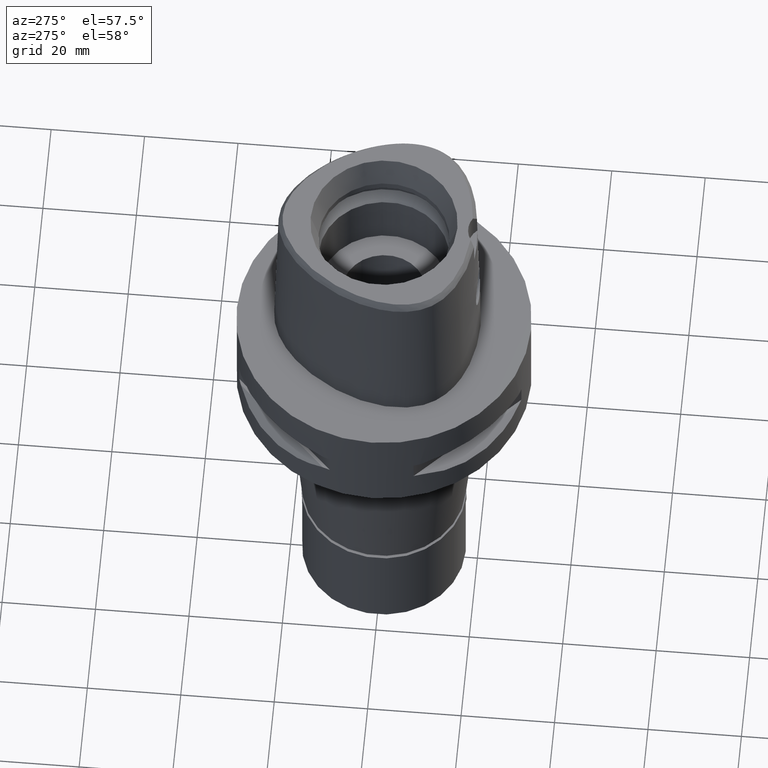
[diagram: clean part render]
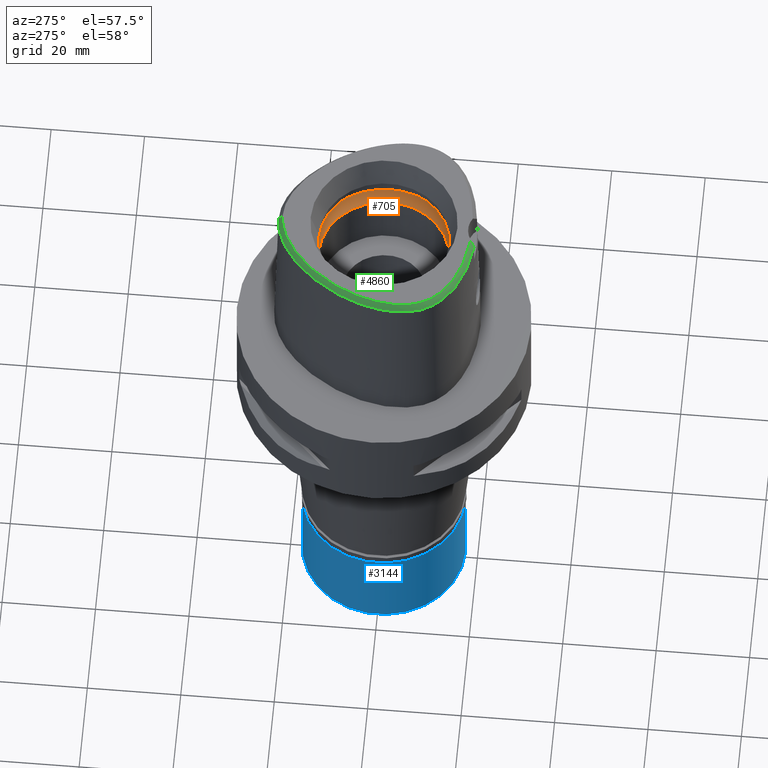
[diagram: same view with three faces highlighted in distinct colors, each labeled with its STEP entity id]
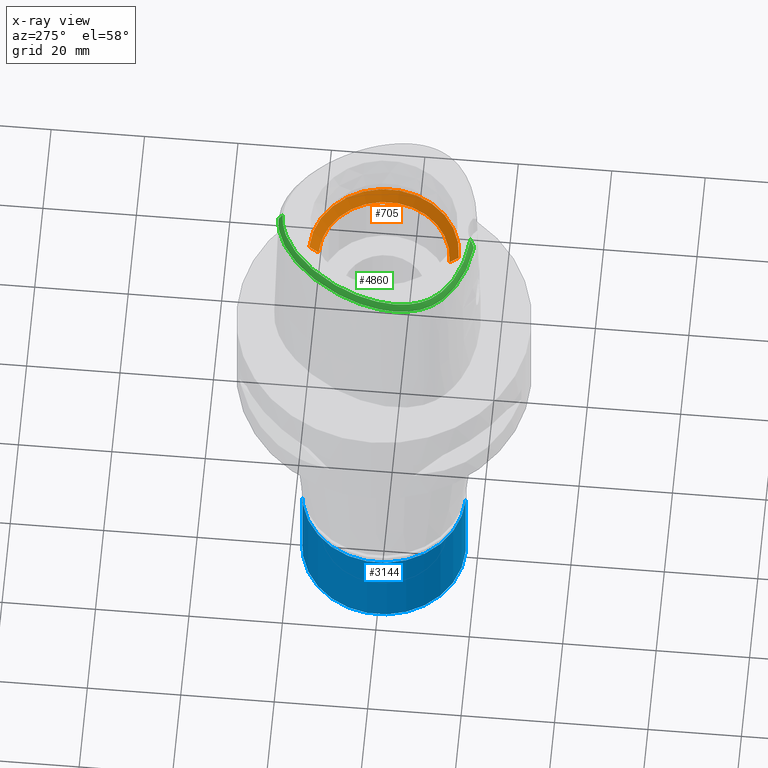
[diagram: x-ray of the same camera — body ghosted, the three highlighted faces saturated]
A machine part, auxiliary view with three faces highlighted in distinct colors.
The next image is the same camera in x-ray (body ghosted, the three faces saturated) — at least one of them is partly hidden behind the body in this view.
Their STEP definitions:

[orange] entity #705 — the highlighted conical surface has half-angle 45 deg.
#108 = CARTESIAN_POINT ( 'NONE',  ( 0.0000000000000000000, -14.00000000000000000, 24.19999999999999929 ) ) ;
#148 = EDGE_LOOP ( 'NONE', ( #951, #2965, #1402, #787 ) ) ;
#393 = EDGE_CURVE ( 'NONE', #3385, #3373, #489, .T. ) ;
#489 = LINE ( 'NONE', #108, #527 ) ;
#527 = VECTOR ( 'NONE', #4734, 1000.000000000000114 ) ;
#561 = EDGE_CURVE ( 'NONE', #3385, #2872, #3978, .T. ) ;
#677 = DIRECTION ( 'NONE',  ( 0.0000000000000000000, 0.0000000000000000000, -1.000000000000000000 ) ) ;
#686 = DIRECTION ( 'NONE',  ( 0.0000000000000000000, 0.0000000000000000000, 1.000000000000000000 ) ) ;
#705 = ADVANCED_FACE ( 'NONE', ( #2675 ), #1316, .F. ) ;
#787 = ORIENTED_EDGE ( 'NONE', *, *, #393, .T. ) ;
#951 = ORIENTED_EDGE ( 'NONE', *, *, #4789, .F. ) ;
#1316 = CONICAL_SURFACE ( 'NONE', #3006, 15.00000000000000000, 0.7853981633972997312 ) ;
#1402 = ORIENTED_EDGE ( 'NONE', *, *, #561, .F. ) ;
#1488 = CARTESIAN_POINT ( 'NONE',  ( 0.0000000000000000000, 16.00000000000000000, 26.20000000000000284 ) ) ;
#1739 = DIRECTION ( 'NONE',  ( 0.0000000000000000000, -1.000000000000000000, 0.0000000000000000000 ) ) ;
#1772 = CARTESIAN_POINT ( 'NONE',  ( 0.0000000000000000000, -14.00000000000000000, 24.19999999999999929 ) ) ;
#1802 = CARTESIAN_POINT ( 'NONE',  ( 0.0000000000000000000, -16.00000000000000000, 26.20000000000000284 ) ) ;
#1879 = AXIS2_PLACEMENT_3D ( 'NONE', #3770, #677, #3138 ) ;
#1936 = CARTESIAN_POINT ( 'NONE',  ( 0.0000000000000000000, 14.00000000000000000, 24.19999999999999929 ) ) ;
#2093 = DIRECTION ( 'NONE',  ( 0.0000000000000000000, 0.0000000000000000000, 1.000000000000000000 ) ) ;
#2236 = EDGE_CURVE ( 'NONE', #2872, #4688, #3072, .T. ) ;
#2625 = CARTESIAN_POINT ( 'NONE',  ( 0.0000000000000000000, 0.0000000000000000000, 25.19999999999999929 ) ) ;
#2675 = FACE_OUTER_BOUND ( 'NONE', #148, .T. ) ;
#2872 = VERTEX_POINT ( 'NONE', #3739 ) ;
#2965 = ORIENTED_EDGE ( 'NONE', *, *, #2236, .F. ) ;
#3006 = AXIS2_PLACEMENT_3D ( 'NONE', #2625, #686, #3406 ) ;
#3072 = LINE ( 'NONE', #1936, #4543 ) ;
#3138 = DIRECTION ( 'NONE',  ( 0.0000000000000000000, 1.000000000000000000, 0.0000000000000000000 ) ) ;
#3373 = VERTEX_POINT ( 'NONE', #1802 ) ;
#3385 = VERTEX_POINT ( 'NONE', #1772 ) ;
#3406 = DIRECTION ( 'NONE',  ( 0.0000000000000000000, 1.000000000000000000, 0.0000000000000000000 ) ) ;
#3552 = DIRECTION ( 'NONE',  ( 0.0000000000000000000, 0.7071067811865474617, 0.7071067811865474617 ) ) ;
#3636 = CARTESIAN_POINT ( 'NONE',  ( 0.0000000000000000000, 0.0000000000000000000, 24.19999999999999929 ) ) ;
#3739 = CARTESIAN_POINT ( 'NONE',  ( 0.0000000000000000000, 14.00000000000000000, 24.19999999999999929 ) ) ;
#3770 = CARTESIAN_POINT ( 'NONE',  ( 0.0000000000000000000, 0.0000000000000000000, 26.20000000000000284 ) ) ;
#3904 = AXIS2_PLACEMENT_3D ( 'NONE', #3636, #2093, #1739 ) ;
#3978 = CIRCLE ( 'NONE', #3904, 14.00000000000000000 ) ;
#4543 = VECTOR ( 'NONE', #3552, 1000.000000000000114 ) ;
#4688 = VERTEX_POINT ( 'NONE', #1488 ) ;
#4711 = CIRCLE ( 'NONE', #1879, 16.00000000000000000 ) ;
#4734 = DIRECTION ( 'NONE',  ( 0.0000000000000000000, -0.7071067811865474617, 0.7071067811865474617 ) ) ;
#4789 = EDGE_CURVE ( 'NONE', #4688, #3373, #4711, .T. ) ;

[blue] entity #3144 — the highlighted cylindrical surface (partial cylindrical patch) has radius 17.5 mm, axis along (0, 0, -1).
#22 = DIRECTION ( 'NONE',  ( 0.0000000000000000000, 1.000000000000000000, 0.0000000000000000000 ) ) ;
#50 = CARTESIAN_POINT ( 'NONE',  ( 0.0000000000000000000, 17.50000000000000000, -22.50000000000000000 ) ) ;
#77 = VERTEX_POINT ( 'NONE', #3578 ) ;
#107 = DIRECTION ( 'NONE',  ( 0.0000000000000000000, -1.000000000000000000, 0.0000000000000000000 ) ) ;
#190 = ORIENTED_EDGE ( 'NONE', *, *, #4747, .T. ) ;
#228 = CARTESIAN_POINT ( 'NONE',  ( 0.0000000000000000000, 17.50000000000000000, -2.000000000000000000 ) ) ;
#450 = EDGE_LOOP ( 'NONE', ( #810, #4045, #1771, #190 ) ) ;
#810 = ORIENTED_EDGE ( 'NONE', *, *, #1812, .T. ) ;
#1220 = DIRECTION ( 'NONE',  ( 0.0000000000000000000, 0.0000000000000000000, -1.000000000000000000 ) ) ;
#1303 = DIRECTION ( 'NONE',  ( 0.0000000000000000000, -1.000000000000000000, 0.0000000000000000000 ) ) ;
#1393 = CIRCLE ( 'NONE', #4872, 17.50000000000000000 ) ;
#1604 = VERTEX_POINT ( 'NONE', #1984 ) ;
#1771 = ORIENTED_EDGE ( 'NONE', *, *, #4341, .T. ) ;
#1812 = EDGE_CURVE ( 'NONE', #2272, #1604, #1393, .T. ) ;
#1984 = CARTESIAN_POINT ( 'NONE',  ( 0.0000000000000000000, -17.50000000000000000, -22.50000000000000000 ) ) ;
#2106 = FACE_OUTER_BOUND ( 'NONE', #450, .T. ) ;
#2113 = AXIS2_PLACEMENT_3D ( 'NONE', #3887, #3918, #107 ) ;
#2272 = VERTEX_POINT ( 'NONE', #50 ) ;
#2420 = DIRECTION ( 'NONE',  ( 0.0000000000000000000, 0.0000000000000000000, -1.000000000000000000 ) ) ;
#2492 = CYLINDRICAL_SURFACE ( 'NONE', #2513, 17.50000000000000000 ) ;
#2513 = AXIS2_PLACEMENT_3D ( 'NONE', #3202, #2420, #1303 ) ;
#2592 = CIRCLE ( 'NONE', #2113, 17.50000000000000000 ) ;
#2640 = CARTESIAN_POINT ( 'NONE',  ( 0.0000000000000000000, 0.0000000000000000000, -22.50000000000000000 ) ) ;
#3045 = DIRECTION ( 'NONE',  ( 0.0000000000000000000, 0.0000000000000000000, 1.000000000000000000 ) ) ;
#3144 = ADVANCED_FACE ( 'NONE', ( #2106 ), #2492, .T. ) ;
#3202 = CARTESIAN_POINT ( 'NONE',  ( 0.0000000000000000000, 0.0000000000000000000, 0.0000000000000000000 ) ) ;
#3227 = CARTESIAN_POINT ( 'NONE',  ( 0.0000000000000000000, 17.50000000000000000, -2.000000000000000000 ) ) ;
#3261 = VECTOR ( 'NONE', #4773, 1000.000000000000000 ) ;
#3486 = VECTOR ( 'NONE', #1220, 1000.000000000000000 ) ;
#3578 = CARTESIAN_POINT ( 'NONE',  ( 0.0000000000000000000, -17.50000000000000000, -2.000000000000000000 ) ) ;
#3618 = CARTESIAN_POINT ( 'NONE',  ( 0.0000000000000000000, -17.50000000000000000, -2.000000000000000000 ) ) ;
#3887 = CARTESIAN_POINT ( 'NONE',  ( 0.0000000000000000000, 0.0000000000000000000, -2.000000000000000000 ) ) ;
#3918 = DIRECTION ( 'NONE',  ( 0.0000000000000000000, 0.0000000000000000000, -1.000000000000000000 ) ) ;
#3924 = LINE ( 'NONE', #3618, #3486 ) ;
#4045 = ORIENTED_EDGE ( 'NONE', *, *, #4084, .F. ) ;
#4084 = EDGE_CURVE ( 'NONE', #77, #1604, #3924, .T. ) ;
#4341 = EDGE_CURVE ( 'NONE', #77, #4489, #2592, .T. ) ;
#4417 = LINE ( 'NONE', #3227, #3261 ) ;
#4489 = VERTEX_POINT ( 'NONE', #228 ) ;
#4747 = EDGE_CURVE ( 'NONE', #4489, #2272, #4417, .T. ) ;
#4773 = DIRECTION ( 'NONE',  ( 0.0000000000000000000, 0.0000000000000000000, -1.000000000000000000 ) ) ;
#4872 = AXIS2_PLACEMENT_3D ( 'NONE', #2640, #3045, #22 ) ;

[green] entity #4860 — the highlighted face is a freeform B-spline surface patch.
#16 = CARTESIAN_POINT ( 'NONE',  ( -11.65122332853999865, 16.11073871031999971, 37.55936972986000200 ) ) ;
#40 = CARTESIAN_POINT ( 'NONE',  ( -20.23928888243000301, 1.673030731871999910, 36.96245316391000557 ) ) ;
#61 = CARTESIAN_POINT ( 'NONE',  ( -3.522896839653766321, -18.70811514173364642, 37.99999999999904077 ) ) ;
#63 = CARTESIAN_POINT ( 'NONE',  ( -12.63550512205999965, 15.06529941072999890, 37.55936893757000661 ) ) ;
#208 = CARTESIAN_POINT ( 'NONE',  ( -16.09805956313606146, 9.908742513514807726, 38.00000000000930811 ) ) ;
#212 = CARTESIAN_POINT ( 'NONE',  ( 0.4141501353006000197, 22.29558660181999841, 36.96245045400999629 ) ) ;
#215 = CARTESIAN_POINT ( 'NONE',  ( -15.15169264742999999, -15.04052295678999940, 37.55936896306000250 ) ) ;
#233 = FACE_OUTER_BOUND ( 'NONE', #1436, .T. ) ;
#236 = CARTESIAN_POINT ( 'NONE',  ( -18.90964971338053147, -12.28759719904723369, 36.52186244848004293 ) ) ;
#237 = CARTESIAN_POINT ( 'NONE',  ( -19.22644004572000043, -10.59057773367999999, 37.55936862442999313 ) ) ;
#249 = CARTESIAN_POINT ( 'NONE',  ( -5.058220461388591715, 20.53445508814170495, 38.00000000000527933 ) ) ;
#253 = CARTESIAN_POINT ( 'NONE',  ( -0.6883956192318000378, 22.28697339717000148, 36.96245030460999459 ) ) ;
#256 = CARTESIAN_POINT ( 'NONE',  ( -10.37555402557000050, -17.82577395762999828, 36.96245210350999599 ) ) ;
#259 = CARTESIAN_POINT ( 'NONE',  ( -19.20146630724000048, -11.35415670124999998, 36.96245058168000241 ) ) ;
#276 = CARTESIAN_POINT ( 'NONE',  ( -2.735698246182634907, 21.34559102902546712, 38.00000000000336087 ) ) ;
#284 = CARTESIAN_POINT ( 'NONE',  ( -6.338295148525999956, 20.99184058835000144, 36.36553284997000191 ) ) ;
#287 = CARTESIAN_POINT ( 'NONE',  ( -2.062929546614999499, -18.73147455563999841, 38.15628686104000167 ) ) ;
#289 = CARTESIAN_POINT ( 'NONE',  ( -16.29919432625000297, -13.69510981811999883, 38.15628696512000317 ) ) ;
#294 = EDGE_CURVE ( 'NONE', #3399, #636, #3192, .T. ) ;
#307 = CARTESIAN_POINT ( 'NONE',  ( -4.473300882691000346, 21.44068156475000109, 36.96245044049000228 ) ) ;
#311 = CARTESIAN_POINT ( 'NONE',  ( -11.55158753939999983, -17.37606089088000161, 36.96245029588999387 ) ) ;
#313 = CARTESIAN_POINT ( 'NONE',  ( -17.61747789945999898, -13.91351645992000030, 36.36553212244999855 ) ) ;
#335 = CARTESIAN_POINT ( 'NONE',  ( -19.84994384598999773, 3.050449171732999787, 36.96245177715000096 ) ) ;
#337 = CARTESIAN_POINT ( 'NONE',  ( -7.744761029810000252, -18.60689794413999820, 36.96245234154000059 ) ) ;
#342 = CARTESIAN_POINT ( 'NONE',  ( -3.339321438874627290, -19.25325016374967291, 37.10705438587850580 ) ) ;
#366 = CARTESIAN_POINT ( 'NONE',  ( -20.89001055457000078, 0.4176972955089000017, 36.36553572101999521 ) ) ;
#370 = CARTESIAN_POINT ( 'NONE',  ( -2.291337400606000330, -19.07132985189999985, 37.55936895789999852 ) ) ;
#390 = CARTESIAN_POINT ( 'NONE',  ( -16.62509408197999861, 10.22419463632000003, 36.96245046947999668 ) ) ;
#411 = CARTESIAN_POINT ( 'NONE',  ( -20.56460631761999736, -2.151829174965999680, 37.55936858333000572 ) ) ;
#440 = CARTESIAN_POINT ( 'NONE',  ( -10.42711818056999995, 16.79809784193000155, 38.15628656333999658 ) ) ;
#468 = CARTESIAN_POINT ( 'NONE',  ( -20.29057710010999571, -3.282504513277999969, 38.15628694996000547 ) ) ;
#475 = B_SPLINE_SURFACE_WITH_KNOTS ( 'NONE', 3, 3, ( 
 ( #3759, #2198, #1060, #4831 ),
 ( #2597, #4849, #212, #3661 ),
 ( #4521, #1019, #4908, #975 ),
 ( #1413, #1742, #253, #1363 ),
 ( #2898, #2923, #2226, #4143 ),
 ( #4448, #1817, #660, #4044 ),
 ( #1435, #2502, #2950, #4095 ),
 ( #3332, #691, #3384, #634 ),
 ( #3359, #4498, #307, #1838 ),
 ( #4934, #2524, #1461, #1040 ),
 ( #2175, #1764, #3735, #284 ),
 ( #3705, #1786, #2975, #588 ),
 ( #2125, #4884, #2573, #995 ),
 ( #4074, #615, #3303, #2151 ),
 ( #1384, #4114, #2628, #2657 ),
 ( #440, #1898, #3485, #3516 ),
 ( #1494, #16, #3036, #717 ),
 ( #1863, #63, #2731, #3442 ),
 ( #2350, #3110, #3889, #3413 ),
 ( #4192, #1969, #743, #2274 ),
 ( #4998, #3864, #1165, #4269 ),
 ( #3003, #774, #390, #1519 ),
 ( #3060, #1944, #4246, #1567 ),
 ( #3841, #821, #4219, #2710 ),
 ( #2328, #3812, #4579, #3784 ),
 ( #4547, #797, #4653, #4968 ),
 ( #1191, #4603, #335, #2251 ),
 ( #1093, #1138, #40, #4167 ),
 ( #1540, #1117, #1924, #366 ),
 ( #2679, #2305, #3464, #3081 ),
 ( #4627, #411, #3920, #1593 ),
 ( #468, #4293, #850, #1993 ),
 ( #3132, #1215, #3542, #2381 ),
 ( #4676, #2752, #2155, #1821 ),
 ( #4888, #2556, #978, #2979 ),
 ( #4099, #1067, #2929, #2883 ),
 ( #1044, #4480, #1419, #3308 ),
 ( #2957, #1366, #2180, #4855 ),
 ( #2605, #3288, #619, #3667 ),
 ( #4452, #593, #2505, #1000 ),
 ( #3764, #237, #3365, #1844 ),
 ( #3710, #1389, #259, #3686 ),
 ( #667, #2577, #2230, #4119 ),
 ( #2532, #640, #1793, #2205 ),
 ( #1025, #696, #4503, #1767 ),
 ( #3338, #3740, #4147, #313 ),
 ( #289, #4914, #1440, #4526 ),
 ( #3390, #1347, #4431, #4048 ),
 ( #2130, #215, #1746, #4834 ),
 ( #2902, #4078, #2953, #4478 ),
 ( #4972, #2178, #1022, #1496 ),
 ( #2553, #637, #3417, #4911 ),
 ( #3305, #1064, #311, #4097 ),
 ( #3708, #2575, #256, #1819 ),
 ( #3038, #1789, #3335, #719 ),
 ( #2926, #1119, #337, #4852 ),
 ( #1437, #4886, #2228, #4581 ),
 ( #2977, #2660, #2254, #3386 ),
 ( #745, #4195, #2277, #1417 ),
 ( #1840, #3815, #4524, #662 ),
 ( #4169, #370, #1386, #3362 ),
 ( #287, #3738, #4937, #4500 ) ),
 .UNSPECIFIED., .F., .F., .F.,
 ( 4, 1, 1, 1, 1, 1, 1, 1, 1, 1, 1, 1, 1, 1, 1, 1, 1, 1, 1, 1, 1, 1, 1, 1, 1, 1, 1, 1, 1, 1, 1, 1, 1, 1, 1, 1, 1, 1, 1, 1, 1, 1, 1, 1, 1, 1, 1, 1, 1, 1, 1, 1, 1, 1, 1, 1, 1, 1, 1, 4 ),
 ( 4, 4 ),
 ( -0.01585043674195000044, 0.0000000000000000000, 0.01776034072165999858, 0.03552068144391999638, 0.05328102216616999870, 0.07104136288842999303, 0.08880170361069000817, 0.1065620443330000111, 0.1243223850551999909, 0.1420827257775000019, 0.1598430664997000095, 0.1776034072219000171, 0.1953637479442000002, 0.2131240886664000078, 0.2308844293887999943, 0.2486447701109999742, 0.2664051108332999851, 0.2841654515554999927, 0.3019257922778000314, 0.3196861329999999835, 0.3374464737223000221, 0.3552068144444999742, 0.3729671551668000129, 0.3907274958890999961, 0.4084878366113000037, 0.4262481773335999868, 0.4440085180557999944, 0.4617688587780999776, 0.4795291995003000407, 0.4972895402225999684, 0.5150498809447999760, 0.5328102216671000146, 0.5505705623893999423, 0.5683309031115999499, 0.5860912438338999886, 0.6038515845561001072, 0.6216119252783999238, 0.6393722660005999314, 0.6571326067228999701, 0.6748929474452000088, 0.6926532881674000164, 0.7104136288896999440, 0.7281739696118999516, 0.7459343103341999903, 0.7636946510563999979, 0.7814549917787000366, 0.7992153325008999332, 0.8169756732231999719, 0.8347360139455000105, 0.8524963546678000492, 0.8702566953900000568, 0.8880170361122000644, 0.9057773768344999921, 0.9235377175566999997, 0.9412980582790000383, 0.9590583990012000459, 0.9768187397236000047, 0.9945790804457999013, 1.000000000000000000, 1.006922200500000031 ),
 ( -0.08243471511467000135, 1.082460698241999975 ),
 .UNSPECIFIED. ) ;
#588 = CARTESIAN_POINT ( 'NONE',  ( -7.250791040499000140, 20.48824525087999859, 36.36553221753000287 ) ) ;
#593 = CARTESIAN_POINT ( 'NONE',  ( -19.52420267404000143, -9.975983566325000496, 37.55936875223999749 ) ) ;
#615 = CARTESIAN_POINT ( 'NONE',  ( -8.733853281386000589, 18.65593331164999924, 37.55936855991000556 ) ) ;
#619 = CARTESIAN_POINT ( 'NONE',  ( -20.12460019942000145, -9.443526376059001137, 36.96245074920999940 ) ) ;
#630 = CARTESIAN_POINT ( 'NONE',  ( -15.71788912669608607, -14.29843101565604258, 38.00000000000226663 ) ) ;
#634 = CARTESIAN_POINT ( 'NONE',  ( -3.772250681155000063, 22.05804010319999975, 36.36553266880999757 ) ) ;
#636 = VERTEX_POINT ( 'NONE', #3727 ) ;
#637 = CARTESIAN_POINT ( 'NONE',  ( -12.48307952214000061, -16.57677265975999603, 37.55936865225000076 ) ) ;
#640 = CARTESIAN_POINT ( 'NONE',  ( -18.11471131177999894, -12.29962953434000106, 37.55936886602000158 ) ) ;
#653 = CARTESIAN_POINT ( 'NONE',  ( -1.323674540693611679, 21.61098849316027426, 38.00000000000262190 ) ) ;
#660 = CARTESIAN_POINT ( 'NONE',  ( -2.130580368720000006, 22.10660074423000054, 36.96245044786000022 ) ) ;
#662 = CARTESIAN_POINT ( 'NONE',  ( -2.714526537066000333, -19.74963786283999667, 36.36553321337999733 ) ) ;
#667 = CARTESIAN_POINT ( 'NONE',  ( -18.24149111487000141, -11.53509569780000099, 38.15628697414000214 ) ) ;
#691 = CARTESIAN_POINT ( 'NONE',  ( -3.559529968557000323, 21.38391089510999876, 37.55936882499000262 ) ) ;
#696 = CARTESIAN_POINT ( 'NONE',  ( -17.64561054852000055, -12.85766694215000072, 37.55936871729999638 ) ) ;
#708 = CARTESIAN_POINT ( 'NONE',  ( -1.574545528900000111E-11, 22.56201468012000078, 36.52186680743999858 ) ) ;
#717 = CARTESIAN_POINT ( 'NONE',  ( -12.15403523541000119, 16.60743615272000184, 36.36553602530999285 ) ) ;
#719 = CARTESIAN_POINT ( 'NONE',  ( -9.205387598525998527, -18.57766086468000211, 36.36553639707000229 ) ) ;
#728 = CARTESIAN_POINT ( 'NONE',  ( -3.470663397168999981E-11, 21.68728795390000030, 38.00000000000000000 ) ) ;
#743 = CARTESIAN_POINT ( 'NONE',  ( -14.83887107757000123, 12.91149569827999954, 36.96245091470999711 ) ) ;
#745 = CARTESIAN_POINT ( 'NONE',  ( -3.513170095872999887, -18.61612458430000316, 38.15628686171999817 ) ) ;
#774 = CARTESIAN_POINT ( 'NONE',  ( -16.32188299958000144, 10.04271016768999836, 37.55936870717999909 ) ) ;
#797 = CARTESIAN_POINT ( 'NONE',  ( -19.04161127055000335, 4.345510450024000271, 37.55936853625000538 ) ) ;
#819 = CARTESIAN_POINT ( 'NONE',  ( -15.00295592773807840, -14.82617991125373891, 38.00000000000046896 ) ) ;
#821 = CARTESIAN_POINT ( 'NONE',  ( -17.83974496342000293, 7.211005655489000077, 37.55936898027999860 ) ) ;
#850 = CARTESIAN_POINT ( 'NONE',  ( -20.99668819064000047, -3.250729922139000028, 36.96245043574000277 ) ) ;
#938 = VECTOR ( 'NONE', #3774, 1000.000000000000227 ) ;
#972 = CARTESIAN_POINT ( 'NONE',  ( -20.38301517462936374, -3.278344853327840980, 38.00000000000731148 ) ) ;
#975 = CARTESIAN_POINT ( 'NONE',  ( -0.02766375472411999881, 22.66112451077000145, 36.36553253766999916 ) ) ;
#978 = CARTESIAN_POINT ( 'NONE',  ( -20.88880712119999572, -6.256237671464000449, 36.96245074902000738 ) ) ;
#989 = CARTESIAN_POINT ( 'NONE',  ( -11.46564124494306824, 15.92741340513072856, 38.00000000000417089 ) ) ;
#995 = CARTESIAN_POINT ( 'NONE',  ( -8.190760515302001110, 19.90052794231999655, 36.36553225457000593 ) ) ;
#999 = CARTESIAN_POINT ( 'NONE',  ( -14.22011356155766570, -16.41829364186597928, 36.52186244848004293 ) ) ;
#1000 = CARTESIAN_POINT ( 'NONE',  ( -20.16980830817999859, -10.26399340822999839, 36.36553239894000455 ) ) ;
#1015 = CARTESIAN_POINT ( 'NONE',  ( -4.254559144977275054, 20.86660163696783954, 38.00000000000230926 ) ) ;
#1019 = CARTESIAN_POINT ( 'NONE',  ( -0.02612670178291999837, 21.95422344150000171, 37.55936878963999703 ) ) ;
#1022 = CARTESIAN_POINT ( 'NONE',  ( -13.62702884383000068, -16.39170135232999925, 36.96245041612999671 ) ) ;
#1023 = CARTESIAN_POINT ( 'NONE',  ( -19.55745547455832067, -11.29150218115996296, 36.52186244848004293 ) ) ;
#1025 = CARTESIAN_POINT ( 'NONE',  ( -17.38224078368000036, -12.62193516692999928, 38.15628694128999854 ) ) ;
#1036 = CARTESIAN_POINT ( 'NONE',  ( -17.91005512243640041, -12.13778127739362311, 38.00000000000078160 ) ) ;
#1040 = CARTESIAN_POINT ( 'NONE',  ( -5.454045405974000005, 21.41756548954000294, 36.36553271028999745 ) ) ;
#1043 = CARTESIAN_POINT ( 'NONE',  ( -2.376843896518209931, 22.39422508474159201, 36.52186244848004293 ) ) ;
#1044 = CARTESIAN_POINT ( 'NONE',  ( -19.89425573369999967, -7.788108179216000515, 38.15628695899999911 ) ) ;
#1060 = CARTESIAN_POINT ( 'NONE',  ( 0.6286394834098999462, 22.28441747077999935, 36.96245014996000577 ) ) ;
#1064 = CARTESIAN_POINT ( 'NONE',  ( -11.41714857666000071, -17.04922920670000153, 37.55936863344999921 ) ) ;
#1067 = CARTESIAN_POINT ( 'NONE',  ( -20.40763731352000221, -7.070670777564999732, 37.55936865246999901 ) ) ;
#1093 = CARTESIAN_POINT ( 'NONE',  ( -19.55472298654000340, 1.497240409773999970, 38.15628653899999279 ) ) ;
#1117 = CARTESIAN_POINT ( 'NONE',  ( -20.19749071540000074, 0.2764041643333999820, 37.55936964783000320 ) ) ;
#1119 = CARTESIAN_POINT ( 'NONE',  ( -7.661115622121998925, -18.26355488576000141, 37.55936950221000359 ) ) ;
#1138 = CARTESIAN_POINT ( 'NONE',  ( -19.89700593447999921, 1.585135570823000162, 37.55936985146000495 ) ) ;
#1165 = CARTESIAN_POINT ( 'NONE',  ( -15.75847510606999791, 11.59716221984999862, 36.96245109422000041 ) ) ;
#1191 = CARTESIAN_POINT ( 'NONE',  ( -19.17486999499999811, 2.841174415503999739, 38.15628674790000474 ) ) ;
#1213 = CARTESIAN_POINT ( 'NONE',  ( -7.599370508970048732, -18.01010694911068910, 38.00000000000814993 ) ) ;
#1215 = CARTESIAN_POINT ( 'NONE',  ( -20.66147761914999847, -4.313852443900000111, 37.55936874741999532 ) ) ;
#1268 = CARTESIAN_POINT ( 'NONE',  ( -14.21001600787614549, -15.34519100086094667, 38.00000000000134293 ) ) ;
#1325 = CARTESIAN_POINT ( 'NONE',  ( -1.574545528900000111E-11, 22.56201468012000078, 36.52186680743999858 ) ) ;
#1337 = VERTEX_POINT ( 'NONE', #728 ) ;
#1338 = CARTESIAN_POINT ( 'NONE',  ( -20.15090095364314493, -7.024227649787214034, 38.00000000000559908 ) ) ;
#1347 = CARTESIAN_POINT ( 'NONE',  ( -15.87857969376999989, -14.50397203446000027, 37.55936874044999740 ) ) ;
#1350 = ORIENTED_EDGE ( 'NONE', *, *, #2173, .F. ) ;
#1359 = CARTESIAN_POINT ( 'NONE',  ( -17.60426951086884628, 7.098774535280567122, 37.99999999999836575 ) ) ;
#1363 = CARTESIAN_POINT ( 'NONE',  ( -0.7105433129759000099, 22.63975142989000133, 36.36553197207000210 ) ) ;
#1366 = CARTESIAN_POINT ( 'NONE',  ( -20.03207839318999817, -8.619615530778999002, 37.55936869522999189 ) ) ;
#1378 = CARTESIAN_POINT ( 'NONE',  ( -18.24302769442125083, 5.671232572957731755, 38.00000000000159872 ) ) ;
#1384 = CARTESIAN_POINT ( 'NONE',  ( -9.465367539356998705, 17.63428323412999887, 38.15628680009000107 ) ) ;
#1386 = CARTESIAN_POINT ( 'NONE',  ( -2.315192615092000139, -19.42377305223000050, 36.96245105986000112 ) ) ;
#1389 = CARTESIAN_POINT ( 'NONE',  ( -18.89920716981000126, -11.17089303774999998, 37.55936875481999948 ) ) ;
#1413 = CARTESIAN_POINT ( 'NONE',  ( -0.6441002317437000135, 21.58141733173999910, 38.15628696970000533 ) ) ;
#1417 = CARTESIAN_POINT ( 'NONE',  ( -3.624620302294999874, -19.67016351520000228, 36.36553310135000316 ) ) ;
#1418 = CARTESIAN_POINT ( 'NONE',  ( -21.07430010672547382, -0.4408303445193073600, 36.52186244848004293 ) ) ;
#1419 = CARTESIAN_POINT ( 'NONE',  ( -20.58127834871000061, -7.954561950154999117, 36.96245037570000136 ) ) ;
#1435 = CARTESIAN_POINT ( 'NONE',  ( -2.713139573433000162, 21.25584019731999774, 38.15628689068999790 ) ) ;
#1436 = EDGE_LOOP ( 'NONE', ( #3750, #1350, #1852, #2825 ) ) ;
#1437 = CARTESIAN_POINT ( 'NONE',  ( -6.170885190719000768, -18.22745132015000280, 38.15628696361999772 ) ) ;
#1440 = CARTESIAN_POINT ( 'NONE',  ( -16.76614823803999954, -14.22581472901999966, 36.96245033509999445 ) ) ;
#1461 = CARTESIAN_POINT ( 'NONE',  ( -5.309487567054000046, 21.09504783899999936, 36.96245077323000316 ) ) ;
#1494 = CARTESIAN_POINT ( 'NONE',  ( -11.39981737510000137, 15.86238998910999953, 38.15628658213999813 ) ) ;
#1496 = CARTESIAN_POINT ( 'NONE',  ( -13.79528042584999881, -16.70249673688999792, 36.36553214773000064 ) ) ;
#1519 = CARTESIAN_POINT ( 'NONE',  ( -16.92830516439000021, 10.40567910495000170, 36.36553223178000138 ) ) ;
#1540 = CARTESIAN_POINT ( 'NONE',  ( -19.85123079582000116, 0.2057575987456999878, 38.15628661123999876 ) ) ;
#1567 = CARTESIAN_POINT ( 'NONE',  ( -17.73929270240999756, 8.974946278733002103, 36.36553259990999720 ) ) ;
#1593 = CARTESIAN_POINT ( 'NONE',  ( -21.26802061852999870, -2.082605337003999857, 36.36553177238000245 ) ) ;
#1712 = CARTESIAN_POINT ( 'NONE',  ( -16.93638123745656188, -13.22593246128079869, 37.99999999999731415 ) ) ;
#1742 = CARTESIAN_POINT ( 'NONE',  ( -0.6662479254877000656, 21.93419536445000162, 37.55936863715999152 ) ) ;
#1746 = CARTESIAN_POINT ( 'NONE',  ( -15.35318460238000071, -15.33089106064999996, 36.96245107202000213 ) ) ;
#1759 = CARTESIAN_POINT ( 'NONE',  ( -9.524337278000640339, 17.70558492631137071, 37.99999999999957367 ) ) ;
#1764 = CARTESIAN_POINT ( 'NONE',  ( -6.013442772164999894, 20.36406042224999879, 37.55936887382999601 ) ) ;
#1766 = CARTESIAN_POINT ( 'NONE',  ( -21.14970188363580661, -6.717195958887920426, 36.52186244848004293 ) ) ;
#1767 = CARTESIAN_POINT ( 'NONE',  ( -18.17235007819999737, -13.32913049258000093, 36.36553226932000626 ) ) ;
#1786 = CARTESIAN_POINT ( 'NONE',  ( -6.891897313663999824, 19.87930204778000132, 37.55936870333000144 ) ) ;
#1789 = CARTESIAN_POINT ( 'NONE',  ( -9.004311059957998964, -17.90008751024999967, 37.55936983008000141 ) ) ;
#1792 = CARTESIAN_POINT ( 'NONE',  ( -20.67704215116155453, -8.734985316449400017, 36.52186244848004293 ) ) ;
#1793 = CARTESIAN_POINT ( 'NONE',  ( -18.39195674092999866, -12.51888354077000010, 36.96245084350000099 ) ) ;
#1809 = CARTESIAN_POINT ( 'NONE',  ( -7.655222869370912342, 19.09452359225985774, 38.00000000000007105 ) ) ;
#1817 = CARTESIAN_POINT ( 'NONE',  ( -2.065250316984999834, 21.75922964056999831, 37.55936869798999567 ) ) ;
#1819 = CARTESIAN_POINT ( 'NONE',  ( -10.49302957101999922, -18.15907225504999900, 36.36553480589000031 ) ) ;
#1821 = CARTESIAN_POINT ( 'NONE',  ( -21.32970613339999844, -5.341074931202000720, 36.36553320902000053 ) ) ;
#1838 = CARTESIAN_POINT ( 'NONE',  ( -4.599146376083000476, 21.77095859606999895, 36.36553218611000204 ) ) ;
#1840 = CARTESIAN_POINT ( 'NONE',  ( -2.631373929250000021, -18.69312805918000109, 38.15628685101000173 ) ) ;
#1844 = CARTESIAN_POINT ( 'NONE',  ( -19.85293275617999953, -10.91812600521999954, 36.36553192486000086 ) ) ;
#1852 = ORIENTED_EDGE ( 'NONE', *, *, #2637, .F. ) ;
#1863 = CARTESIAN_POINT ( 'NONE',  ( -12.37224013458000016, 14.82956469538000022, 38.15628686315999829 ) ) ;
#1898 = CARTESIAN_POINT ( 'NONE',  ( -10.66585212899999924, 17.05865815038000122, 37.55936978287999750 ) ) ;
#1924 = CARTESIAN_POINT ( 'NONE',  ( -20.54375063498000031, 0.3470507299212000629, 36.96245268442000054 ) ) ;
#1944 = CARTESIAN_POINT ( 'NONE',  ( -17.11638653573000113, 8.641056364138000490, 37.55936880642000375 ) ) ;
#1969 = CARTESIAN_POINT ( 'NONE',  ( -14.55417785704000089, 12.70215223062999854, 37.55936889625999697 ) ) ;
#1993 = CARTESIAN_POINT ( 'NONE',  ( -21.34974373590999974, -3.234842626569000235, 36.36553217862999787 ) ) ;
#2012 = CARTESIAN_POINT ( 'NONE',  ( -4.706994425064518595, -18.56721852572622211, 38.00000000000462563 ) ) ;
#2040 = CARTESIAN_POINT ( 'NONE',  ( -3.637738201363999835, -19.56971413236999879, 36.52186244848000030 ) ) ;
#2092 = CARTESIAN_POINT ( 'NONE',  ( -18.99520880203930773, -10.46968343926230460, 38.00000000000177636 ) ) ;
#2115 = CARTESIAN_POINT ( 'NONE',  ( -20.40060226222636075, -4.311417605381375751, 38.00000000000411404 ) ) ;
#2125 = CARTESIAN_POINT ( 'NONE',  ( -7.604015042473000641, 19.01745388193999986, 38.15628694269000221 ) ) ;
#2130 = CARTESIAN_POINT ( 'NONE',  ( -14.95020069249000016, -14.75015485291999973, 38.15628685411000021 ) ) ;
#2145 = CARTESIAN_POINT ( 'NONE',  ( -19.78262210840123103, -8.543146992551859498, 38.00000000000299138 ) ) ;
#2151 = CARTESIAN_POINT ( 'NONE',  ( -9.155521143518997818, 19.22318439258999945, 36.36553168552000415 ) ) ;
#2154 = CARTESIAN_POINT ( 'NONE',  ( -17.90324032096463114, -13.53935111954962700, 36.52186244848004293 ) ) ;
#2155 = CARTESIAN_POINT ( 'NONE',  ( -20.97701905032000269, -5.318211469516999301, 36.96245108982999739 ) ) ;
#2173 = EDGE_CURVE ( 'NONE', #3957, #1337, #4953, .T. ) ;
#2175 = CARTESIAN_POINT ( 'NONE',  ( -5.851016583984999464, 20.05017033919999747, 38.15628688577000105 ) ) ;
#2178 = CARTESIAN_POINT ( 'NONE',  ( -13.45877726181000078, -16.08090596777000059, 37.55936868451999544 ) ) ;
#2180 = CARTESIAN_POINT ( 'NONE',  ( -20.37001400585999988, -8.723206596192000006, 36.96245044135000057 ) ) ;
#2192 = CARTESIAN_POINT ( 'NONE',  ( -5.893543501600168710, 20.13235399352110022, 38.00000000000868994 ) ) ;
#2198 = CARTESIAN_POINT ( 'NONE',  ( 0.6090471797555999656, 21.93173460623999915, 37.55936857148000740 ) ) ;
#2205 = CARTESIAN_POINT ( 'NONE',  ( -18.66920217006999749, -12.73813754721000002, 36.36553282099000484 ) ) ;
#2226 = CARTESIAN_POINT ( 'NONE',  ( -1.400051809288999971, 22.22060971340999913, 36.96245008478000216 ) ) ;
#2228 = CARTESIAN_POINT ( 'NONE',  ( -6.304494562574999961, -18.92147017935999997, 36.96245034502000237 ) ) ;
#2230 = CARTESIAN_POINT ( 'NONE',  ( -18.82196732919999960, -11.93859148648999913, 36.96245027513999304 ) ) ;
#2251 = CARTESIAN_POINT ( 'NONE',  ( -20.18748077147999709, 3.155086549848000299, 36.36553429178000130 ) ) ;
#2254 = CARTESIAN_POINT ( 'NONE',  ( -4.793915152027000914, -19.17527128685999926, 36.96245047760999825 ) ) ;
#2274 = CARTESIAN_POINT ( 'NONE',  ( -15.12356429809999980, 13.12083916591999966, 36.36553293315999724 ) ) ;
#2277 = CARTESIAN_POINT ( 'NONE',  ( -3.587470233487999760, -19.31881720490000021, 36.96245102147999972 ) ) ;
#2305 = CARTESIAN_POINT ( 'NONE',  ( -20.41806261984999793, -0.9706525413620999965, 37.55936884010999677 ) ) ;
#2328 = CARTESIAN_POINT ( 'NONE',  ( -18.15770850321000296, 5.635441311908000017, 38.15628691493000701 ) ) ;
#2350 = CARTESIAN_POINT ( 'NONE',  ( -13.33252146917999958, 13.70437244512999975, 38.15628699560000570 ) ) ;
#2381 = CARTESIAN_POINT ( 'NONE',  ( -21.36828742065999975, -4.320449340402999994, 36.36553238107000396 ) ) ;
#2480 = CARTESIAN_POINT ( 'NONE',  ( -19.28591707036579095, -9.869682450886195113, 38.00000000000360245 ) ) ;
#2498 = CARTESIAN_POINT ( 'NONE',  ( -0.6498990081533834173, 21.67378274708052288, 37.99999999999778311 ) ) ;
#2502 = CARTESIAN_POINT ( 'NONE',  ( -2.799299573513000183, 21.59863215821000182, 37.55936885993999397 ) ) ;
#2505 = CARTESIAN_POINT ( 'NONE',  ( -19.84700549111000001, -10.11998848727999878, 36.96245057558999747 ) ) ;
#2518 = CARTESIAN_POINT ( 'NONE',  ( -6.759433772716245237, 19.65454812512846061, 37.99999999999781863 ) ) ;
#2524 = CARTESIAN_POINT ( 'NONE',  ( -5.164929728134000975, 20.77253018845999932, 37.55936883618000621 ) ) ;
#2531 = CARTESIAN_POINT ( 'NONE',  ( -16.39211280192347786, -14.95758113319088523, 36.52186244848004293 ) ) ;
#2532 = CARTESIAN_POINT ( 'NONE',  ( -17.83746588262999921, -12.08037552791000202, 38.15628688853000483 ) ) ;
#2546 = CARTESIAN_POINT ( 'NONE',  ( -3.470663397168999981E-11, 21.68728795390000030, 38.00000000000000000 ) ) ;
#2553 = CARTESIAN_POINT ( 'NONE',  ( -12.33168900533999945, -16.25743233869999571, 38.15628696435000222 ) ) ;
#2555 = CARTESIAN_POINT ( 'NONE',  ( -7.108589416785278559, 20.52412325828742468, 36.52186244848004293 ) ) ;
#2556 = CARTESIAN_POINT ( 'NONE',  ( -20.53796752414000082, -6.213482482097999693, 37.55936882588999737 ) ) ;
#2567 = CARTESIAN_POINT ( 'NONE',  ( -3.481017203588733455, 21.13509756881288837, 37.99999999999887734 ) ) ;
#2573 = CARTESIAN_POINT ( 'NONE',  ( -7.995178691026000983, 19.60616992219000210, 36.96245048394000321 ) ) ;
#2575 = CARTESIAN_POINT ( 'NONE',  ( -10.25807848011000090, -17.49247566020000022, 37.55936940112000144 ) ) ;
#2577 = CARTESIAN_POINT ( 'NONE',  ( -18.53172922203000184, -11.73684359214000139, 37.55936862463999404 ) ) ;
#2597 = CARTESIAN_POINT ( 'NONE',  ( 0.3879000558754999717, 21.58947090019000115, 38.15628694720000169 ) ) ;
#2605 = CARTESIAN_POINT ( 'NONE',  ( -19.46252610142999728, -9.195730449780999294, 38.15628690274000689 ) ) ;
#2628 = CARTESIAN_POINT ( 'NONE',  ( -9.915822470162000357, 18.17893884149999906, 36.96245143062999716 ) ) ;
#2637 = EDGE_CURVE ( 'NONE', #636, #3957, #4561, .T. ) ;
#2657 = CARTESIAN_POINT ( 'NONE',  ( -10.14104993555999989, 18.45126664518999959, 36.36553374588999787 ) ) ;
#2660 = CARTESIAN_POINT ( 'NONE',  ( -4.743908318009999903, -18.82544916085999986, 37.55936871062999671 ) ) ;
#2679 = CARTESIAN_POINT ( 'NONE',  ( -20.06864378250000058, -1.023547219785000184, 38.15628689772999849 ) ) ;
#2710 = CARTESIAN_POINT ( 'NONE',  ( -18.47773683756000196, 7.515082118417999446, 36.36553324483000438 ) ) ;
#2731 = CARTESIAN_POINT ( 'NONE',  ( -12.89877010955000003, 15.30103412609000024, 36.96245101198000071 ) ) ;
#2750 = CARTESIAN_POINT ( 'NONE',  ( -12.37132652997715176, -16.34104299088043888, 37.99999999999943867 ) ) ;
#2752 = CARTESIAN_POINT ( 'NONE',  ( -20.62433196723999984, -5.295348007831999659, 37.55936897063000401 ) ) ;
#2825 = ORIENTED_EDGE ( 'NONE', *, *, #294, .F. ) ;
#2850 = CARTESIAN_POINT ( 'NONE',  ( -16.88647904404979627, 8.517821442301801937, 38.00000000000139977 ) ) ;
#2875 = CARTESIAN_POINT ( 'NONE',  ( -19.98419490691860645, -7.809898894995296104, 38.00000000000394351 ) ) ;
#2883 = CARTESIAN_POINT ( 'NONE',  ( -21.10323300989999851, -7.196502739288000328, 36.36553202884999791 ) ) ;
#2898 = CARTESIAN_POINT ( 'NONE',  ( -1.312169769485000081, 21.51916074398999967, 38.15628700282000096 ) ) ;
#2902 = CARTESIAN_POINT ( 'NONE',  ( -14.16158106554000007, -15.26634536455999935, 38.15628689953999952 ) ) ;
#2915 = CARTESIAN_POINT ( 'NONE',  ( -20.36398648679275425, -5.278470727084752845, 38.00000000000393641 ) ) ;
#2923 = CARTESIAN_POINT ( 'NONE',  ( -1.356110789386999915, 21.86988522870000295, 37.55936854379999801 ) ) ;
#2926 = CARTESIAN_POINT ( 'NONE',  ( -7.577470214433000173, -17.92021182738999840, 38.15628666288999682 ) ) ;
#2928 = CARTESIAN_POINT ( 'NONE',  ( -19.88562090098361423, 4.345879983792112711, 36.52186244848004293 ) ) ;
#2929 = CARTESIAN_POINT ( 'NONE',  ( -20.75543516171000036, -7.133586758427000518, 36.96245034065999846 ) ) ;
#2943 = CARTESIAN_POINT ( 'NONE',  ( -8.578220530112892206, 18.44656747109069883, 38.00000000000561329 ) ) ;
#2950 = CARTESIAN_POINT ( 'NONE',  ( -2.885459573592999760, 21.94142411909999879, 36.96245082917999980 ) ) ;
#2953 = CARTESIAN_POINT ( 'NONE',  ( -14.53156334968999985, -15.86862725457999979, 36.96245077042000560 ) ) ;
#2955 = CARTESIAN_POINT ( 'NONE',  ( -7.300578999876935704, -19.07170748891635270, 36.52186244848004293 ) ) ;
#2957 = CARTESIAN_POINT ( 'NONE',  ( -19.69414278053000089, -8.516024465366999863, 38.15628694911000451 ) ) ;
#2975 = CARTESIAN_POINT ( 'NONE',  ( -7.071344177082000471, 20.18377364932999640, 36.96245046042999860 ) ) ;
#2977 = CARTESIAN_POINT ( 'NONE',  ( -4.693901483992000578, -18.47562703484999957, 38.15628694365000229 ) ) ;
#2979 = CARTESIAN_POINT ( 'NONE',  ( -21.23964671826000128, -6.298992860830000318, 36.36553267215000318 ) ) ;
#3003 = CARTESIAN_POINT ( 'NONE',  ( -16.01867191718000072, 9.861225699063998817, 38.15628694488000860 ) ) ;
#3036 = CARTESIAN_POINT ( 'NONE',  ( -11.90262928197000036, 16.35908743151999900, 36.96245287757999165 ) ) ;
#3038 = CARTESIAN_POINT ( 'NONE',  ( -8.903772790674000959, -17.56130083304000067, 38.15628654659000318 ) ) ;
#3043 = CARTESIAN_POINT ( 'NONE',  ( -2.682279906006999948, -18.78035848609999903, 38.00000000000000000 ) ) ;
#3060 = CARTESIAN_POINT ( 'NONE',  ( -16.80493345239000291, 8.474111406840000527, 38.15628690967000125 ) ) ;
#3081 = CARTESIAN_POINT ( 'NONE',  ( -21.11690029454000239, -0.8648631845163999854, 36.36553272487000044 ) ) ;
#3110 = CARTESIAN_POINT ( 'NONE',  ( -13.60688593763999954, 13.92708541138000022, 37.55936856415999614 ) ) ;
#3132 = CARTESIAN_POINT ( 'NONE',  ( -20.30807271839000094, -4.310553995648001013, 38.15628693060000387 ) ) ;
#3192 = B_SPLINE_CURVE_WITH_KNOTS ( 'NONE', 3,
 ( #3043, #4942, #342, #2040 ),
 .UNSPECIFIED., .F., .F.,
 ( 4, 4 ),
 ( 0.0000000000000000000, 1.000000000000000000 ),
 .UNSPECIFIED. ) ;
#3235 = B_SPLINE_CURVE_WITH_KNOTS ( 'NONE', 3,
 ( #4323, #3944, #61, #2012, #4674, #1213, #3966, #4267, #3565, #2750, #4733, #1268, #819, #630, #4492, #1712, #4020, #1036, #3281, #3635, #2092, #2480, #4090, #2145, #2875, #1338, #4828, #2915, #2115, #972, #4443, #4421, #3726, #3655, #4901, #4468, #1378, #1359, #2850, #208, #3299, #4874, #4401, #4845, #989, #3259, #1759, #2943, #1809, #2518, #2192, #249, #1015, #2567, #276, #4110, #653, #2498, #3353, #2546 ),
 .UNSPECIFIED., .F., .F.,
 ( 4, 1, 1, 1, 1, 1, 1, 1, 1, 1, 1, 1, 1, 1, 1, 1, 1, 1, 1, 1, 1, 1, 1, 1, 1, 1, 1, 1, 1, 1, 1, 1, 1, 1, 1, 1, 1, 1, 1, 1, 1, 1, 1, 1, 1, 1, 1, 1, 1, 1, 1, 1, 1, 1, 1, 1, 1, 4 ),
 ( 0.0000000000000000000, 0.005420919554200098744, 0.02318126027639999531, 0.04094160099879995407, 0.05870194172099996166, 0.07646228244330000035, 0.09422262316550000794, 0.1119829638877999356, 0.1297433046099999432, 0.1475036453321999508, 0.1652639860544999895, 0.1830243267768000281, 0.2007846674991000668, 0.2185450082212999634, 0.2363053489436000021, 0.2540656896658000097, 0.2718260303881000484, 0.2895863711103000560, 0.3073467118325999836, 0.3251070525547999912, 0.3428673932771000299, 0.3606277339994000686, 0.3783880747216000762, 0.3961484154438998928, 0.4139087561661000114, 0.4316690968884000501, 0.4494294376106000577, 0.4671897783328999854, 0.4849501190552000240, 0.5027104597774000316, 0.5204708004996999593, 0.5382311412219000779, 0.5559914819442000056, 0.5737518226664000132, 0.5915121633886999408, 0.6092725041108999484, 0.6270328448331999871, 0.6447931855555000258, 0.6625535262777000334, 0.6803138669999999610, 0.6980742077221999686, 0.7158345484445000073, 0.7335948891667000149, 0.7513552298890000536, 0.7691155706112000612, 0.7868759113336000199, 0.8046362520558000275, 0.8223965927780999552, 0.8401569335002999628, 0.8579172742224999704, 0.8756776149448000091, 0.8934379556670000166, 0.9111982963893099363, 0.9289586371115700070, 0.9467189778338299666, 0.9644793185560800453, 0.9822396592783400049, 1.000000000000000000 ),
 .UNSPECIFIED. ) ;
#3259 = CARTESIAN_POINT ( 'NONE',  ( -10.48962422759716695, 16.86631853278876747, 38.00000000000830624 ) ) ;
#3281 = CARTESIAN_POINT ( 'NONE',  ( -18.31748213707096795, -11.58791794387865437, 37.99999999999748468 ) ) ;
#3288 = CARTESIAN_POINT ( 'NONE',  ( -19.79356315041999892, -9.319628412919998439, 37.55936882596999737 ) ) ;
#3299 = CARTESIAN_POINT ( 'NONE',  ( -15.24692477332227725, 11.25717358966418935, 38.00000000000613909 ) ) ;
#3303 = CARTESIAN_POINT ( 'NONE',  ( -8.944687212452000935, 18.93955885211999757, 36.96245012271000263 ) ) ;
#3305 = CARTESIAN_POINT ( 'NONE',  ( -11.28270961391000071, -16.72239752252000144, 38.15628697102000189 ) ) ;
#3308 = CARTESIAN_POINT ( 'NONE',  ( -20.92478965621000242, -8.037788835625001127, 36.36553208403999804 ) ) ;
#3332 = CARTESIAN_POINT ( 'NONE',  ( -3.453169612258000232, 21.04684629105999960, 38.15628690308000159 ) ) ;
#3335 = CARTESIAN_POINT ( 'NONE',  ( -9.104849329242000522, -18.23887418746999955, 36.96245311357999697 ) ) ;
#3337 = CARTESIAN_POINT ( 'NONE',  ( -4.467522189395160659, -19.48130287050652854, 36.52186244848004293 ) ) ;
#3338 = CARTESIAN_POINT ( 'NONE',  ( -16.87125513430999746, -13.16018604243000212, 38.15628695531999881 ) ) ;
#3353 = CARTESIAN_POINT ( 'NONE',  ( -0.2181979014508132475, 21.68728795389032626, 37.99999999999928235 ) ) ;
#3359 = CARTESIAN_POINT ( 'NONE',  ( -4.221609895908000176, 20.78012750210999826, 38.15628694924000541 ) ) ;
#3362 = CARTESIAN_POINT ( 'NONE',  ( -2.339047829579000037, -19.77621625256000115, 36.36553316183000106 ) ) ;
#3365 = CARTESIAN_POINT ( 'NONE',  ( -19.53968640094999998, -10.75435186944999977, 36.96245027464999566 ) ) ;
#3384 = CARTESIAN_POINT ( 'NONE',  ( -3.665890324855999971, 21.72097549915999792, 36.96245074690000365 ) ) ;
#3386 = CARTESIAN_POINT ( 'NONE',  ( -4.843921986044999350, -19.52509341286999955, 36.36553224458000244 ) ) ;
#3390 = CARTESIAN_POINT ( 'NONE',  ( -15.66089399674000227, -14.22552793682999983, 38.15628693306999963 ) ) ;
#3399 = VERTEX_POINT ( 'NONE', #4863 ) ;
#3413 = CARTESIAN_POINT ( 'NONE',  ( -14.15561487457000034, 14.37251134389999940, 36.36553170129000279 ) ) ;
#3417 = CARTESIAN_POINT ( 'NONE',  ( -12.63447003895000087, -16.89611298081999990, 36.96245034014000197 ) ) ;
#3442 = CARTESIAN_POINT ( 'NONE',  ( -13.16203509702999952, 15.53676884143999892, 36.36553308638999482 ) ) ;
#3464 = CARTESIAN_POINT ( 'NONE',  ( -20.76748145720000238, -0.9177578629391999199, 36.96245078249000215 ) ) ;
#3485 = CARTESIAN_POINT ( 'NONE',  ( -10.90458607742999853, 17.31921845882000000, 36.96245300241999843 ) ) ;
#3516 = CARTESIAN_POINT ( 'NONE',  ( -11.14332002587000048, 17.57977876726000233, 36.36553622197000379 ) ) ;
#3542 = CARTESIAN_POINT ( 'NONE',  ( -21.01488251989999867, -4.317150892151000008, 36.96245056424999831 ) ) ;
#3565 = CARTESIAN_POINT ( 'NONE',  ( -11.31790883121087354, -16.80796958613168357, 38.00000000000125056 ) ) ;
#3597 = CARTESIAN_POINT ( 'NONE',  ( -1.574545528900000111E-11, 22.56201468012000078, 36.52186680743999858 ) ) ;
#3635 = CARTESIAN_POINT ( 'NONE',  ( -18.67608643721449369, -11.03561202291076881, 38.00000000000019185 ) ) ;
#3642 = CARTESIAN_POINT ( 'NONE',  ( -0.7901461696976564975, 22.56201478746603684, 36.52186244848004293 ) ) ;
#3655 = CARTESIAN_POINT ( 'NONE',  ( -19.64434054693006715, 1.520253387635419173, 37.99999999999666755 ) ) ;
#3661 = CARTESIAN_POINT ( 'NONE',  ( 0.4272751750131000281, 22.64864445263000192, 36.36553220741000558 ) ) ;
#3667 = CARTESIAN_POINT ( 'NONE',  ( -20.45563724840999953, -9.567424339197998506, 36.36553267243999699 ) ) ;
#3686 = CARTESIAN_POINT ( 'NONE',  ( -19.50372544468000058, -11.53742036473999910, 36.36553240853000091 ) ) ;
#3705 = CARTESIAN_POINT ( 'NONE',  ( -6.712450450246000067, 19.57483044621999824, 38.15628694623000428 ) ) ;
#3708 = CARTESIAN_POINT ( 'NONE',  ( -10.14060293465999862, -17.15917736277999950, 38.15628669874000423 ) ) ;
#3710 = CARTESIAN_POINT ( 'NONE',  ( -18.59694803237999849, -10.98762937426000086, 38.15628692797000099 ) ) ;
#3726 = CARTESIAN_POINT ( 'NONE',  ( -19.94188961899627799, 0.2242544969873314642, 38.00000000000778044 ) ) ;
#3727 = CARTESIAN_POINT ( 'NONE',  ( -3.637738201363999835, -19.56971413236999879, 36.52186244848000030 ) ) ;
#3735 = CARTESIAN_POINT ( 'NONE',  ( -6.175868960345999525, 20.67795050530000012, 36.96245086189999540 ) ) ;
#3738 = CARTESIAN_POINT ( 'NONE',  ( -2.084620644797000377, -19.08405090843999830, 37.55936894352999644 ) ) ;
#3740 = CARTESIAN_POINT ( 'NONE',  ( -17.11999605601999974, -13.41129618159000181, 37.55936867769999310 ) ) ;
#3750 = ORIENTED_EDGE ( 'NONE', *, *, #4486, .T. ) ;
#3759 = CARTESIAN_POINT ( 'NONE',  ( 0.5894548761012999849, 21.57905174170000251, 38.15628699300000193 ) ) ;
#3764 = CARTESIAN_POINT ( 'NONE',  ( -18.91319369049000088, -10.42680359791999933, 38.15628697422000215 ) ) ;
#3774 = DIRECTION ( 'NONE',  ( -1.103957904740014787E-11, -0.5092834681090075977, 0.8605988316927122295 ) ) ;
#3784 = CARTESIAN_POINT ( 'NONE',  ( -19.13530611319999863, 6.045541909020999860, 36.36553254492999798 ) ) ;
#3812 = CARTESIAN_POINT ( 'NONE',  ( -18.48357437321000063, 5.772141510946000587, 37.55936879158999631 ) ) ;
#3815 = CARTESIAN_POINT ( 'NONE',  ( -2.659091465188000214, -19.04529799372999932, 37.55936897180000500 ) ) ;
#3841 = CARTESIAN_POINT ( 'NONE',  ( -17.52074902634999987, 7.058967424023999904, 38.15628684800000059 ) ) ;
#3864 = CARTESIAN_POINT ( 'NONE',  ( -15.46417231459999897, 11.40156152031999959, 37.55936897250000328 ) ) ;
#3889 = CARTESIAN_POINT ( 'NONE',  ( -13.88125040610999861, 14.14979837763999981, 36.96245013272000079 ) ) ;
#3920 = CARTESIAN_POINT ( 'NONE',  ( -20.91631346807999847, -2.117217255984999991, 36.96245017786000631 ) ) ;
#3944 = CARTESIAN_POINT ( 'NONE',  ( -2.841965291530507365, -18.76757795571910492, 37.99999999999995737 ) ) ;
#3957 = VERTEX_POINT ( 'NONE', #3597 ) ;
#3966 = CARTESIAN_POINT ( 'NONE',  ( -8.930096025510199098, -17.65000298921501454, 38.00000000000208900 ) ) ;
#4020 = CARTESIAN_POINT ( 'NONE',  ( -17.45119705493878826, -12.68365517585456459, 38.00000000000889600 ) ) ;
#4044 = CARTESIAN_POINT ( 'NONE',  ( -2.195910420455999823, 22.45397184790000011, 36.36553219772000034 ) ) ;
#4047 = CARTESIAN_POINT ( 'NONE',  ( -3.637738201363999835, -19.56971413236999879, 36.52186244848000030 ) ) ;
#4048 = CARTESIAN_POINT ( 'NONE',  ( -16.31395108782999870, -15.06086022971000027, 36.36553235520000271 ) ) ;
#4074 = CARTESIAN_POINT ( 'NONE',  ( -8.523019350318998377, 18.37230777117000002, 38.15628699711000138 ) ) ;
#4078 = CARTESIAN_POINT ( 'NONE',  ( -14.34657220760999863, -15.56748630957000046, 37.55936883497999901 ) ) ;
#4090 = CARTESIAN_POINT ( 'NONE',  ( -19.54919922642135433, -9.228169790567953612, 38.00000000000469669 ) ) ;
#4095 = CARTESIAN_POINT ( 'NONE',  ( -2.971619573672000136, 22.28421607998999932, 36.36553279843000297 ) ) ;
#4097 = CARTESIAN_POINT ( 'NONE',  ( -11.68602650215000160, -17.70289257504999725, 36.36553195831999830 ) ) ;
#4098 = CARTESIAN_POINT ( 'NONE',  ( -4.757642277158938171, 21.67478330407401543, 36.52186244848004293 ) ) ;
#4099 = CARTESIAN_POINT ( 'NONE',  ( -20.05983946533000051, -7.007754796703999922, 38.15628696427999955 ) ) ;
#4110 = CARTESIAN_POINT ( 'NONE',  ( -2.017025177696294858, 21.50280829367497404, 38.00000000000243716 ) ) ;
#4114 = CARTESIAN_POINT ( 'NONE',  ( -9.690595004759998687, 17.90661103781999941, 37.55936911535999201 ) ) ;
#4119 = CARTESIAN_POINT ( 'NONE',  ( -19.11220543636000002, -12.14033938082999953, 36.36553192563999204 ) ) ;
#4143 = CARTESIAN_POINT ( 'NONE',  ( -1.443992829189999938, 22.57133419810999797, 36.36553162575999920 ) ) ;
#4147 = CARTESIAN_POINT ( 'NONE',  ( -17.36873697773999936, -13.66240632076000061, 36.96245040007999449 ) ) ;
#4167 = CARTESIAN_POINT ( 'NONE',  ( -20.58157183036999882, 1.760925892921999969, 36.36553647637000353 ) ) ;
#4169 = CARTESIAN_POINT ( 'NONE',  ( -2.267482186118999987, -18.71888665156999920, 38.15628685594000302 ) ) ;
#4192 = CARTESIAN_POINT ( 'NONE',  ( -14.26948463650000143, 12.49280876299000020, 38.15628687781000394 ) ) ;
#4195 = CARTESIAN_POINT ( 'NONE',  ( -3.550320164680999646, -18.96747089460000169, 37.55936894159999895 ) ) ;
#4219 = CARTESIAN_POINT ( 'NONE',  ( -18.15874090049000245, 7.363043886952999273, 36.96245111255000637 ) ) ;
#4246 = CARTESIAN_POINT ( 'NONE',  ( -17.42783961906999934, 8.808001321435000364, 36.96245070316999914 ) ) ;
#4267 = CARTESIAN_POINT ( 'NONE',  ( -10.17136073855333223, -17.24644253469905308, 38.00000000000412115 ) ) ;
#4269 = CARTESIAN_POINT ( 'NONE',  ( -16.05277789754000040, 11.79276291938000121, 36.36553321595000199 ) ) ;
#4293 = CARTESIAN_POINT ( 'NONE',  ( -20.64363264536999765, -3.266617217707999732, 37.55936869284999347 ) ) ;
#4323 = CARTESIAN_POINT ( 'NONE',  ( -2.682279906006999948, -18.78035848609999903, 38.00000000000000000 ) ) ;
#4401 = CARTESIAN_POINT ( 'NONE',  ( -13.40435640711394072, 13.76268382997318085, 38.00000000000370903 ) ) ;
#4410 = CARTESIAN_POINT ( 'NONE',  ( -13.70645028111149344, 15.04851272300912335, 36.52186244848004293 ) ) ;
#4421 = CARTESIAN_POINT ( 'NONE',  ( -20.16012968311533626, -1.009698174524653824, 38.00000000000839862 ) ) ;
#4431 = CARTESIAN_POINT ( 'NONE',  ( -16.09626539079999930, -14.78241613207999983, 36.96245054782999517 ) ) ;
#4443 = CARTESIAN_POINT ( 'NONE',  ( -20.30498420086730604, -2.177378896258167718, 38.00000000000324718 ) ) ;
#4448 = CARTESIAN_POINT ( 'NONE',  ( -1.999920265249000018, 21.41185853691000318, 38.15628694813000266 ) ) ;
#4451 = CARTESIAN_POINT ( 'NONE',  ( -10.91891098965328055, -18.03046406390440026, 36.52186244848004293 ) ) ;
#4452 = CARTESIAN_POINT ( 'NONE',  ( -19.20139985696999929, -9.831978645372000614, 38.15628692889000462 ) ) ;
#4468 = CARTESIAN_POINT ( 'NONE',  ( -18.79649882724764964, 4.256255933890432885, 37.99999999999680256 ) ) ;
#4478 = CARTESIAN_POINT ( 'NONE',  ( -14.71655449176000019, -16.16976819960000000, 36.36553270585999798 ) ) ;
#4479 = CARTESIAN_POINT ( 'NONE',  ( -17.27359245833522294, 9.972912913898216658, 36.52186244848004293 ) ) ;
#4480 = CARTESIAN_POINT ( 'NONE',  ( -20.23776704119999792, -7.871335064685999861, 37.55936866735000024 ) ) ;
#4486 = EDGE_CURVE ( 'NONE', #3399, #1337, #3235, .T. ) ;
#4492 = CARTESIAN_POINT ( 'NONE',  ( -16.36032397153574891, -13.76458520345253866, 38.00000000000776623 ) ) ;
#4498 = CARTESIAN_POINT ( 'NONE',  ( -4.347455389300000306, 21.11040453342999967, 37.55936869485999807 ) ) ;
#4500 = CARTESIAN_POINT ( 'NONE',  ( -2.128002841161000358, -19.78920361404999895, 36.36553310851000020 ) ) ;
#4502 = CARTESIAN_POINT ( 'NONE',  ( -10.15538788053295782, 18.47129535094252262, 36.52186244848004293 ) ) ;
#4503 = CARTESIAN_POINT ( 'NONE',  ( -17.90898031336000074, -13.09339871737000038, 36.96245049331000132 ) ) ;
#4521 = CARTESIAN_POINT ( 'NONE',  ( -0.02535817531231999988, 21.60077290685999785, 38.15628691562000085 ) ) ;
#4524 = CARTESIAN_POINT ( 'NONE',  ( -2.686809001127000052, -19.39746792829000199, 36.96245109259000117 ) ) ;
#4526 = CARTESIAN_POINT ( 'NONE',  ( -16.99962519392999738, -14.49116718448000007, 36.36553202007999630 ) ) ;
#4547 = CARTESIAN_POINT ( 'NONE',  ( -18.70956021091000210, 4.224598364694999830, 38.15628700548999319 ) ) ;
#4561 = B_SPLINE_CURVE_WITH_KNOTS ( 'NONE', 3,
 ( #4047, #3337, #2955, #4451, #999, #2531, #2154, #236, #1023, #4854, #1792, #1766, #4887, #1418, #2928, #4479, #4410, #4502, #2555, #4098, #1043, #3642, #1325 ),
 .UNSPECIFIED., .F., .F.,
 ( 4, 1, 1, 1, 1, 1, 1, 1, 1, 1, 1, 1, 1, 1, 1, 1, 1, 1, 1, 1, 4 ),
 ( 0.0000000000000000000, 0.03580973941716571185, 0.1234633994701219151, 0.1672902294965474546, 0.2111170595229729940, 0.2549438895495037549, 0.2768573045627165108, 0.2987707195758241285, 0.3206841345891420225, 0.3425975496023548894, 0.3864243796287802901, 0.4302512096552058574, 0.4740780396816314246, 0.5617316997345875862, 0.6493853597875438588, 0.7370390198403948823, 0.8246926798932460168, 0.8685195099196715285, 0.9123463399461285706, 0.9561731699725646294, 1.000000000000000000 ),
 .UNSPECIFIED. ) ;
#4579 = CARTESIAN_POINT ( 'NONE',  ( -18.80944024319999741, 5.908841709984000268, 36.96245066826000425 ) ) ;
#4581 = CARTESIAN_POINT ( 'NONE',  ( -6.371299248503000889, -19.26847960896999723, 36.36553203572999848 ) ) ;
#4603 = CARTESIAN_POINT ( 'NONE',  ( -19.51240692049000103, 2.945811793617999719, 37.55936926252999797 ) ) ;
#4627 = CARTESIAN_POINT ( 'NONE',  ( -20.21289916717000068, -2.186441093946000169, 38.15628698880000513 ) ) ;
#4653 = CARTESIAN_POINT ( 'NONE',  ( -19.37366233019999839, 4.466422535351999734, 36.96245006701000335 ) ) ;
#4674 = CARTESIAN_POINT ( 'NONE',  ( -6.188376196366547788, -18.31830638231498298, 38.00000000000277822 ) ) ;
#4676 = CARTESIAN_POINT ( 'NONE',  ( -20.27164488415999699, -5.272484546146999129, 38.15628685143000354 ) ) ;
#4733 = CARTESIAN_POINT ( 'NONE',  ( -13.33457781970264655, -15.85148397417124677, 38.00000000000395062 ) ) ;
#4828 = CARTESIAN_POINT ( 'NONE',  ( -20.27898581532276623, -6.181921586190226137, 37.99999999999830180 ) ) ;
#4831 = CARTESIAN_POINT ( 'NONE',  ( 0.6482317870641000068, 22.63710033531999954, 36.36553172845000148 ) ) ;
#4834 = CARTESIAN_POINT ( 'NONE',  ( -15.55467655732999965, -15.62125916451999963, 36.36553318097000442 ) ) ;
#4845 = CARTESIAN_POINT ( 'NONE',  ( -12.44116897271257294, 14.89128547409854519, 38.00000000000689226 ) ) ;
#4849 = CARTESIAN_POINT ( 'NONE',  ( 0.4010250955880000356, 21.94252875099999756, 37.55936870059999677 ) ) ;
#4852 = CARTESIAN_POINT ( 'NONE',  ( -7.828406437498000692, -18.95024100250999766, 36.36553518086000025 ) ) ;
#4854 = CARTESIAN_POINT ( 'NONE',  ( -20.09619618741216840, -10.23243843868544189, 36.52186244848004293 ) ) ;
#4855 = CARTESIAN_POINT ( 'NONE',  ( -20.70794961852000071, -8.826797661603999146, 36.36553218745999771 ) ) ;
#4860 = ADVANCED_FACE ( 'NONE', ( #233 ), #475, .F. ) ;
#4863 = CARTESIAN_POINT ( 'NONE',  ( -2.682279906006999948, -18.78035848609999903, 38.00000000000000000 ) ) ;
#4874 = CARTESIAN_POINT ( 'NONE',  ( -14.34402387965482184, 12.54761970512554470, 38.00000000000527223 ) ) ;
#4884 = CARTESIAN_POINT ( 'NONE',  ( -7.799596866748999879, 19.31181190207000142, 37.55936871331999782 ) ) ;
#4886 = CARTESIAN_POINT ( 'NONE',  ( -6.237689876646999920, -18.57446074974999917, 37.55936865431999649 ) ) ;
#4887 = CARTESIAN_POINT ( 'NONE',  ( -21.32871527669869138, -4.105831244394445356, 36.52186244848004293 ) ) ;
#4888 = CARTESIAN_POINT ( 'NONE',  ( -20.18712792708999615, -6.170727292731999825, 38.15628690276000157 ) ) ;
#4901 = CARTESIAN_POINT ( 'NONE',  ( -19.26324493738620092, 2.868570891456458050, 38.00000000000640199 ) ) ;
#4908 = CARTESIAN_POINT ( 'NONE',  ( -0.02689522825352000032, 22.30767397614000203, 36.96245066365000298 ) ) ;
#4911 = CARTESIAN_POINT ( 'NONE',  ( -12.78586055575000024, -17.21545330188000023, 36.36553202803000318 ) ) ;
#4914 = CARTESIAN_POINT ( 'NONE',  ( -16.53267128215000170, -13.96046227357000014, 37.55936865010999526 ) ) ;
#4934 = CARTESIAN_POINT ( 'NONE',  ( -5.020371889214000127, 20.45001253790999840, 38.15628689911999771 ) ) ;
#4937 = CARTESIAN_POINT ( 'NONE',  ( -2.106311742978999924, -19.43662726124999907, 36.96245102601999832 ) ) ;
#4942 = CARTESIAN_POINT ( 'NONE',  ( -3.014271304856287692, -18.99139391533377363, 37.59976690305183666 ) ) ;
#4953 = LINE ( 'NONE', #708, #938 ) ;
#4968 = CARTESIAN_POINT ( 'NONE',  ( -19.70571338983999965, 4.587334620681001063, 36.36553159777000133 ) ) ;
#4972 = CARTESIAN_POINT ( 'NONE',  ( -13.29052567978999910, -15.77011058319999925, 38.15628695291000838 ) ) ;
#4998 = CARTESIAN_POINT ( 'NONE',  ( -15.16986952314000092, 11.20596082078999878, 38.15628685077000171 ) ) ;